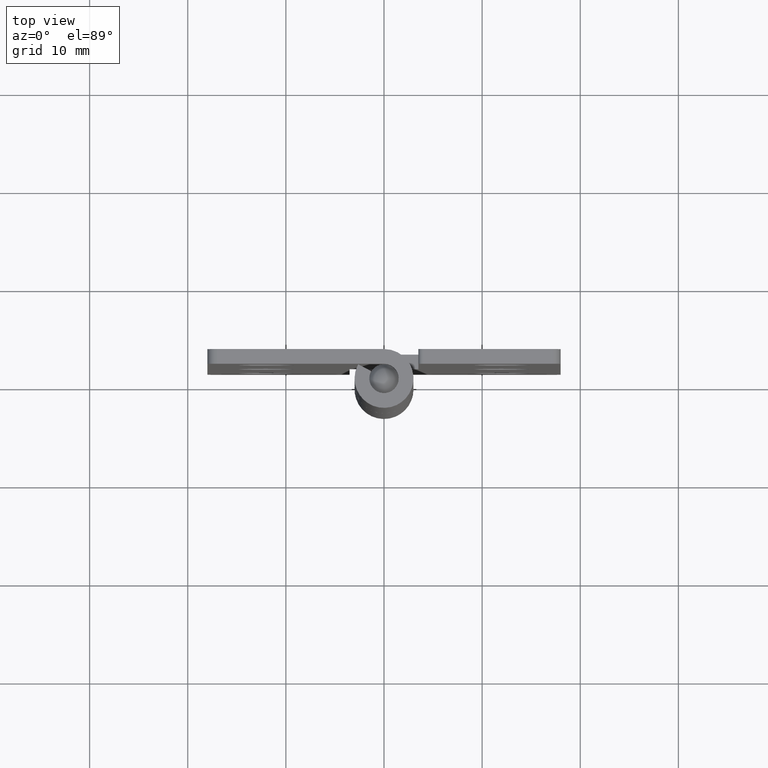
[diagram: clean part render]
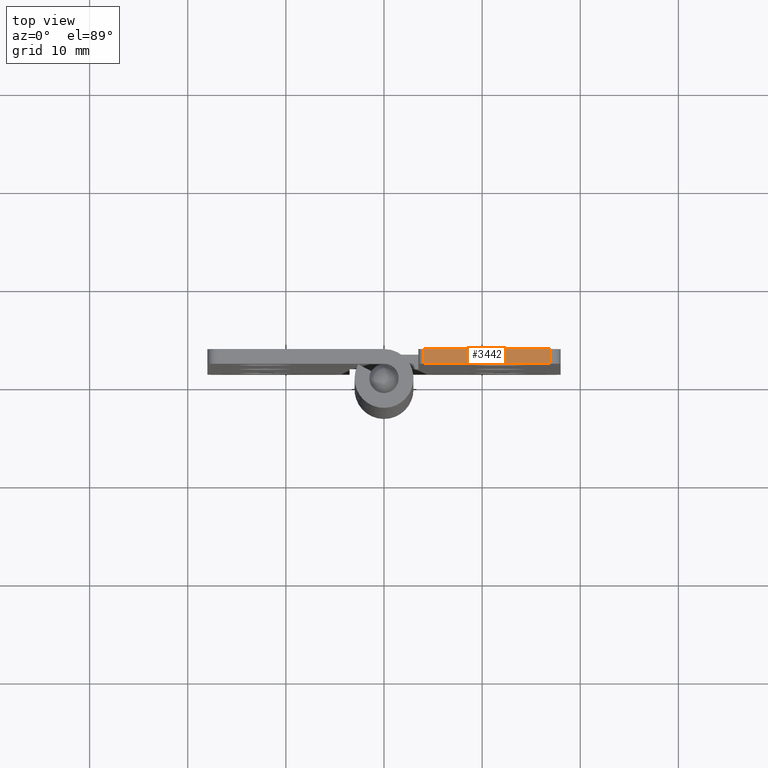
[diagram: same view with one face highlighted and labeled with its STEP entity id]
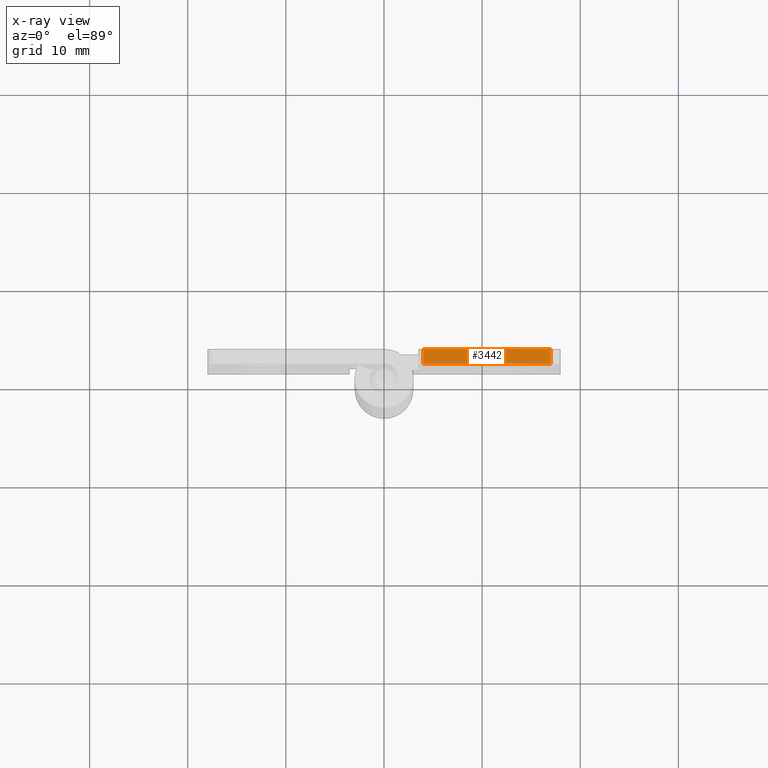
[diagram: x-ray of the same camera — body ghosted, the highlighted face saturated]
A machine part, top view. The second image highlights one B-rep face of the part: STEP entity #3442.
The next image is the same camera in x-ray: the body ghosted, the highlighted face saturated — about 0% of this face is hidden behind the body in this view.
In plain terms, the highlighted face is a freeform B-spline surface patch.
Its self-contained STEP definition (entity closure, byte-faithful):
#2980=CARTESIAN_POINT('',(3.999999999999901,1.500000000000055,65.0));
#2981=VERTEX_POINT('',#2980);
#2997=CARTESIAN_POINT('',(3.999999999999901,3.0,65.0));
#2998=VERTEX_POINT('',#2997);
#2999=CARTESIAN_POINT('',(3.999999999999901,3.0,65.0));
#3000=CARTESIAN_POINT('',(3.999999999999901,1.500000000000055,65.0));
#3001=QUASI_UNIFORM_CURVE('',1,(#2999,#3000),.UNSPECIFIED.,.F.,.U.);
#3002=EDGE_CURVE('',#2998,#2981,#3001,.T.);
#3141=CARTESIAN_POINT('',(17.0,1.500000000000055,65.0));
#3142=VERTEX_POINT('',#3141);
#3163=CARTESIAN_POINT('',(17.0,3.0,65.0));
#3164=VERTEX_POINT('',#3163);
#3178=CARTESIAN_POINT('',(17.0,3.0,65.0));
#3179=CARTESIAN_POINT('',(17.0,1.500000000000055,65.0));
#3180=QUASI_UNIFORM_CURVE('',1,(#3178,#3179),.UNSPECIFIED.,.F.,.U.);
#3181=EDGE_CURVE('',#3164,#3142,#3180,.T.);
#3423=CARTESIAN_POINT('',(3.350650025196418,1.425075002907349,65.0));
#3424=CARTESIAN_POINT('',(17.649350323490658,1.425075002907349,65.0));
#3425=CARTESIAN_POINT('',(3.350650025196418,3.074925037325842,65.0));
#3426=CARTESIAN_POINT('',(17.649350323490658,3.074925037325842,65.0));
#3427=B_SPLINE_SURFACE_WITH_KNOTS('',1,1,((#3423,#3425),(#3424,#3426)),.UNSPECIFIED.,.F.,.F.,.U.,(2,2),(2,2),(0.0,14.298700298294239),(0.041708334948495,0.958291687403247),.UNSPECIFIED.);
#3428=ORIENTED_EDGE('',*,*,#3002,.T.);
#3429=CARTESIAN_POINT('',(3.999999999999901,1.500000000000055,65.0));
#3430=CARTESIAN_POINT('',(17.0,1.500000000000055,65.0));
#3431=QUASI_UNIFORM_CURVE('',1,(#3429,#3430),.UNSPECIFIED.,.F.,.U.);
#3432=EDGE_CURVE('',#2981,#3142,#3431,.T.);
#3433=ORIENTED_EDGE('',*,*,#3432,.T.);
#3434=ORIENTED_EDGE('',*,*,#3181,.F.);
#3435=CARTESIAN_POINT('',(17.0,3.0,65.0));
#3436=CARTESIAN_POINT('',(3.999999999999901,3.0,65.0));
#3437=QUASI_UNIFORM_CURVE('',1,(#3435,#3436),.UNSPECIFIED.,.F.,.U.);
#3438=EDGE_CURVE('',#3164,#2998,#3437,.T.);
#3439=ORIENTED_EDGE('',*,*,#3438,.T.);
#3440=EDGE_LOOP('',(#3428,#3433,#3434,#3439));
#3441=FACE_OUTER_BOUND('',#3440,.T.);
#3442=ADVANCED_FACE('',(#3441),#3427,.T.);